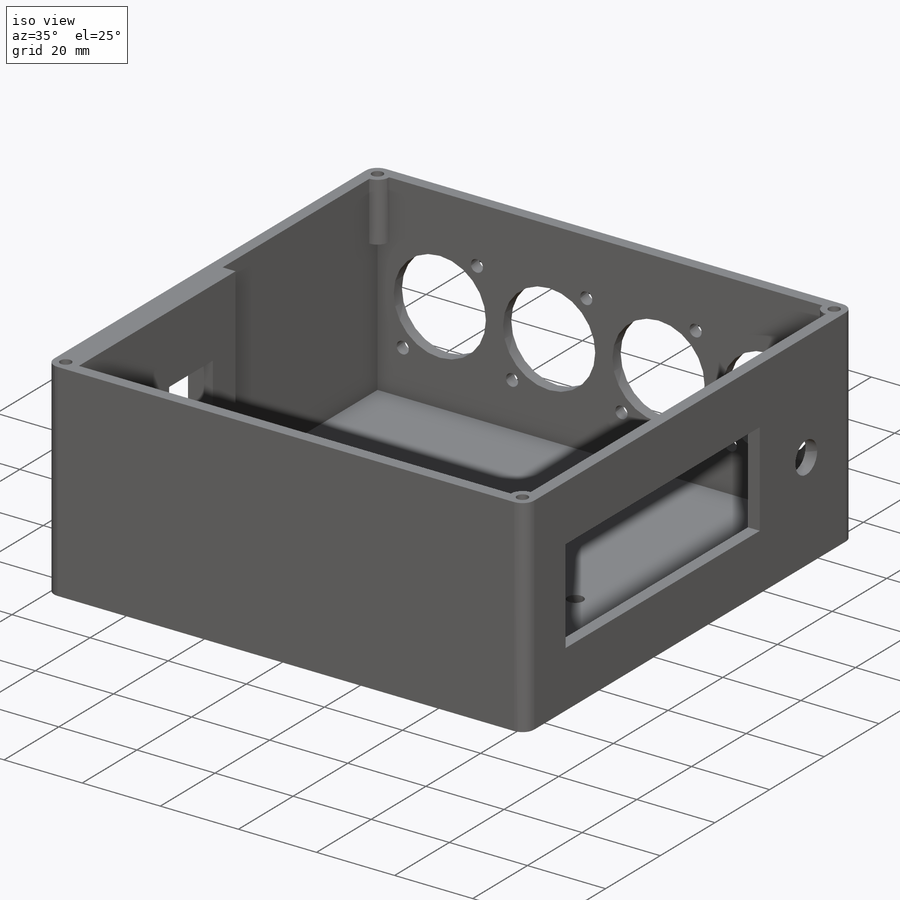
[diagram: iso view]
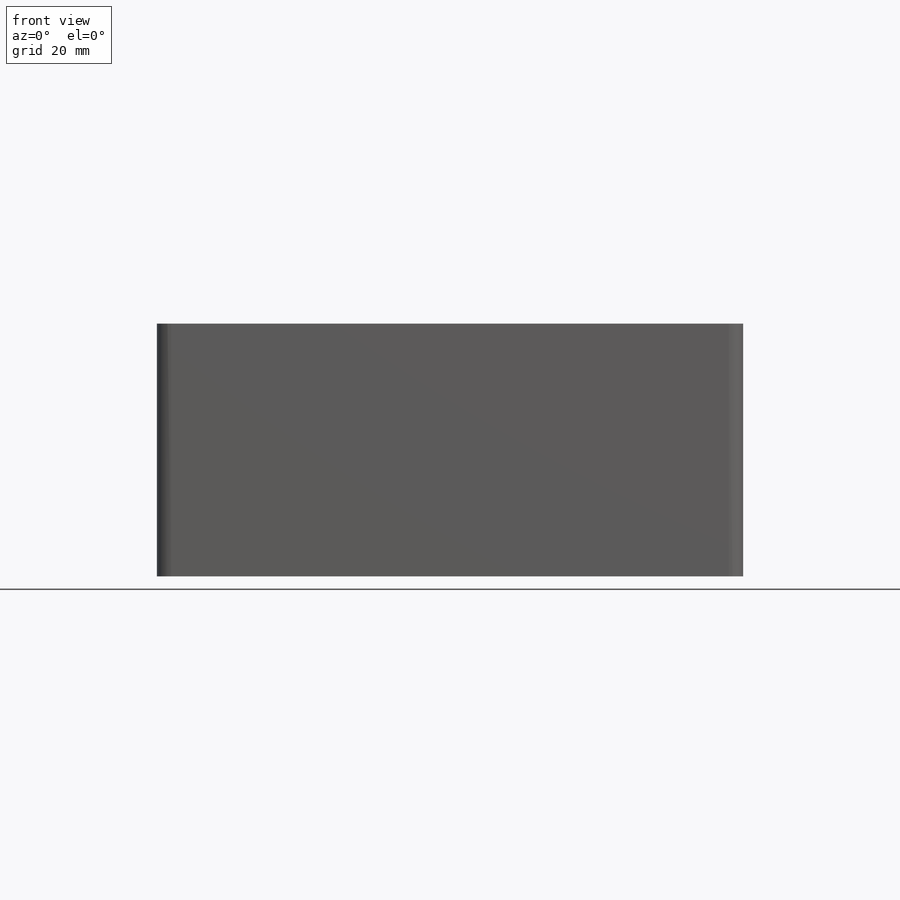
[diagram: front view]
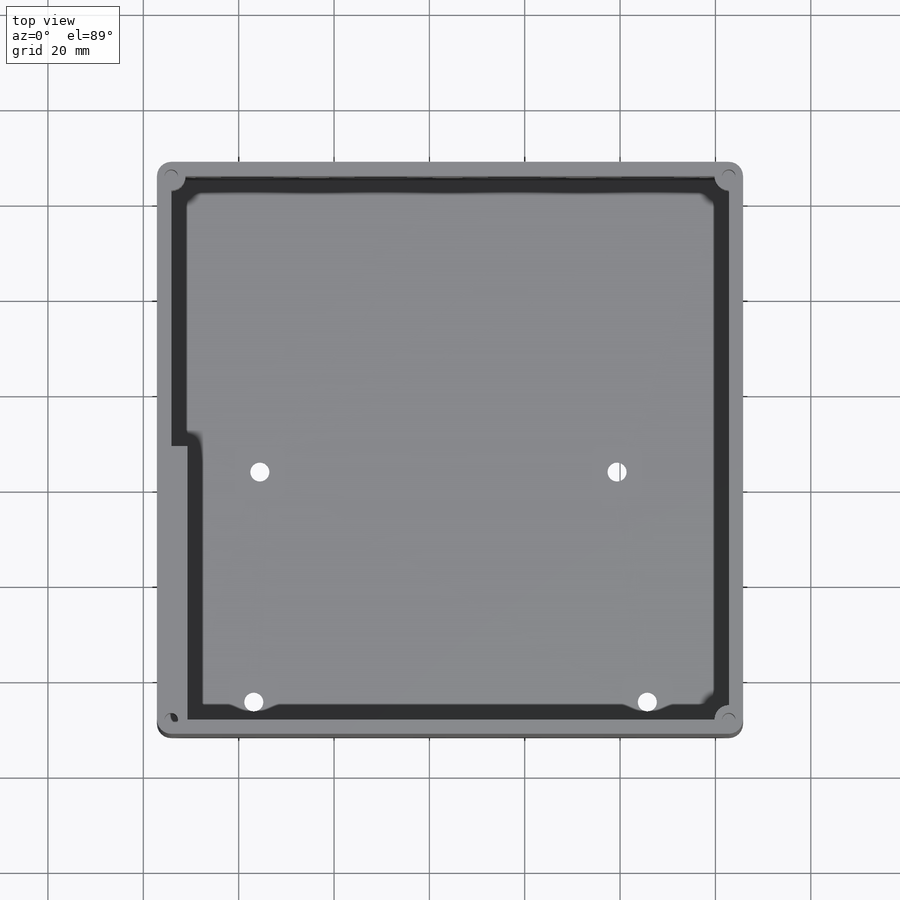
[diagram: top view]
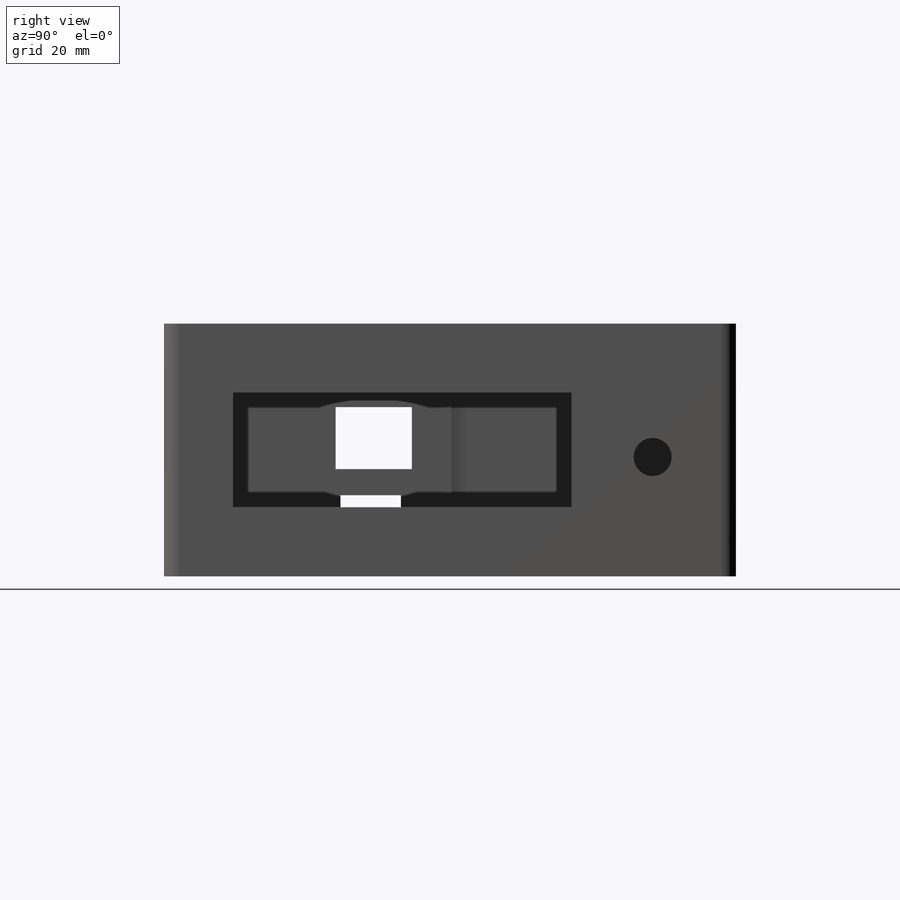
[diagram: right view]
SOLIDWORKS PART (.sldprt)
format: sldprt  version: not decoded by parser v0  size: 999,424 bytes
history: native  units: mm
features: sketch x14, cut_extrude x9, extrude x3, material x1, hole x1, fillet x1 + 1 further entry (+12 scaffold rows collapsed)
feature tree (42):
  scaffold x12  (default folders/planes/origin — collapsed)
  material  "Material <not specified>"
  "Annotations"  RD1=116.95mm
  sketch  "Sketch1"  dims[c1.D3=~2.551043mm c1.D8=4.0mm c1.D1=53.34mm c1.D2=101.6mm c2.D3=13.97mm c2.D4=2.54mm c2.D5=2.54mm c2.D6=96.52mm c2.D7=15.24mm c2.D8=50.8mm c2.D9=50.8mm c2.D10=90.17mm c2.D11=6.35mm c2.D12=5.0mm c2.D13=15.0mm c2.D14=120.0mm]
  extrude  "Boss-Extrude1"  Depth=3mm
  sketch  "Sketch2"  dims[D1=6.35mm D2=3.0mm D3=3.0mm D4=3.0mm]
  extrude  "Boss-Extrude2"  Depth=50mm
  sketch  "Sketch3"  dims[D1=57.34mm]
  cut_extrude  "Cut-Extrude1"  Depth=3.35mm
  sketch  "Sketch4"  dims[D1=34.0mm D2=12.7mm D3=11.0mm D4=3.0mm D5=33.0mm D6=16.0mm D7=13.0mm D8=5.5mm]
  cut_extrude  "Cut-Extrude2"  Depth=7mm
  sketch  "Sketch5"  dims[D1=8.89mm D2=3.0mm D3=5.175mm D4=11.0mm]
  cut_extrude  "Cut-Extrude3"  Depth=2.54mm
  sketch  "Sketch6"  dims[c1.D5=8.0mm c1.D6=8.0mm c1.D1=71.0mm c1.D2=24.0mm c1.D3=14.5mm c1.D4=14.5mm c2.D5=25.0mm c2.D6=17.0mm]
  cut_extrude  "Cut-Extrude4"  Depth=5mm
  sketch  "Sketch7"  dims[c1.D1=23.6mm c1.D2=23.6mm c1.D3=3.1mm c1.D4=23.6mm c2.D1=9.5mm c2.D2=9.5mm c2.D3=12.0mm c2.D4=12.0mm c2.D5=26.5mm c2.D6=20.0mm c2.D7=4.0]
  cut_extrude  "Cut-Extrude5"  Depth=5mm
  hole  "CSK for M3 Flat Head Machine Screw1"  Diameter=3.4mm Depth=53mm
  sketch  "Sketch9"
  sketch  "Sketch8"  dims[hole-wizard template sketch: 55 standard entries collapsed; hole parameters kept: c17.Thru Hole Depth=53.0mm c17.Near C'Sink Dia.=6.3mm c17.D4=~3.666174mm c17.Near C'Sink Angle=90.0deg]
  fillet  "Fillet1"  Radius=3mm
  sketch  "Sketch10"  dims[c1.D1=7.8mm c1.D2=7.8mm c2.D1=10.0mm c2.D2=50.0mm]
  cut_extrude  "Cut-Extrude6"  Depth=5mm
  sketch  "Sketch11"
  extrude  "Boss-Extrude3"  Depth=15mm
  sketch  "Sketch12"  dims[c1.D1=3.0mm c1.D2=3.0mm c1.D3=3.0mm c1.D4=3.0mm c1.D5=3.0mm c1.D6=3.0mm c1.D7=1.5mm c2.D1=3.0mm c2.D2=3.0mm c2.D3=3.0mm c2.D4=3.0mm c2.D5=3.0mm c2.D6=3.0mm]
  cut_extrude  "Cut-Extrude7"  Depth=12mm
  sketch  "Sketch13"  dims[D1=5.0mm D2=5.0mm]
  cut_extrude  "Cut-Extrude8"  Depth=1mm
  sketch  "Sketch14"  dims[D1=6.0mm]
  cut_extrude  "Cut-Extrude9"  Depth=1mm
decode coverage: 26 of 28 modeling features carry decoded parameters; 1 rows unclassified (native names shown)
note: ~ marks probable driven/reference dimensions
note: suppression state not decoded; provenance and decode notes live in map.json
